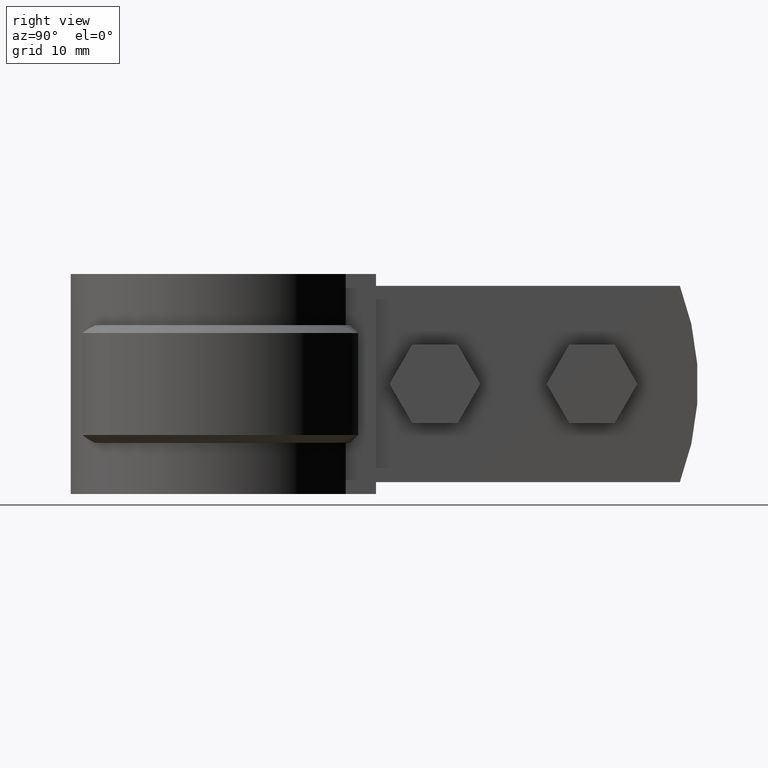
[diagram: clean part render]
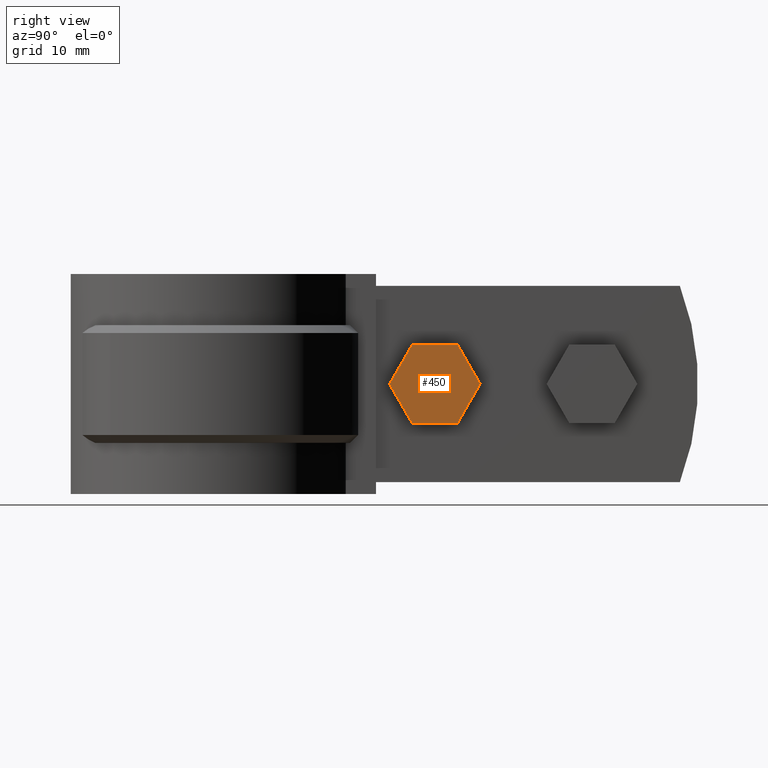
[diagram: same view with one face highlighted and labeled with its STEP entity id]
A machine part, right view. The second image highlights one B-rep face of the part: STEP entity #450.
In plain terms, the highlighted planar face has unit normal (-1, -0, -0).
Its self-contained STEP definition (entity closure, byte-faithful):
#450 = ADVANCED_FACE( '', ( #792 ), #793, .F. );
#792 = FACE_OUTER_BOUND( '', #1634, .T. );
#793 = PLANE( '', #1635 );
#1634 = EDGE_LOOP( '', ( #3929, #3930, #3931, #3932, #3933, #3934 ) );
#1635 = AXIS2_PLACEMENT_3D( '', #3935, #3936, #3937 );
#3929 = ORIENTED_EDGE( '', *, *, #4687, .T. );
#3930 = ORIENTED_EDGE( '', *, *, #4690, .T. );
#3931 = ORIENTED_EDGE( '', *, *, #4693, .T. );
#3932 = ORIENTED_EDGE( '', *, *, #4694, .T. );
#3933 = ORIENTED_EDGE( '', *, *, #4695, .T. );
#3934 = ORIENTED_EDGE( '', *, *, #4696, .T. );
#3935 = CARTESIAN_POINT( '', ( 9.10000000000066, 36.9822006036649, -17.5000000000016 ) );
#3936 = DIRECTION( '', ( -1.00000000000000, -1.47045902452177E-072, -8.48969913639920E-073 ) );
#3937 = DIRECTION( '', ( 1.69793982727990E-072, -0.866025403784439, -0.500000000000000 ) );
#4687 = EDGE_CURVE( '', #5434, #5432, #5435, .T. );
#4690 = EDGE_CURVE( '', #5432, #5437, #5439, .T. );
#4693 = EDGE_CURVE( '', #5437, #5444, #5445, .T. );
#4694 = EDGE_CURVE( '', #5444, #5446, #5447, .T. );
#4695 = EDGE_CURVE( '', #5446, #5448, #5449, .T. );
#4696 = EDGE_CURVE( '', #5448, #5434, #5450, .T. );
#5432 = VERTEX_POINT( '', #7800 );
#5434 = VERTEX_POINT( '', #7803 );
#5435 = LINE( '', #7804, #7805 );
#5437 = VERTEX_POINT( '', #7808 );
#5439 = LINE( '', #7811, #7812 );
#5444 = VERTEX_POINT( '', #7817 );
#5445 = LINE( '', #7818, #7819 );
#5446 = VERTEX_POINT( '', #7820 );
#5447 = LINE( '', #7821, #7822 );
#5448 = VERTEX_POINT( '', #7823 );
#5449 = LINE( '', #7824, #7825 );
#5450 = LINE( '', #7826, #7827 );
#7800 = CARTESIAN_POINT( '', ( 9.10000000000066, 31.2086979117673, -7.49999999999926 ) );
#7803 = CARTESIAN_POINT( '', ( 9.10000000000066, 34.0954492577160, -12.5000000000004 ) );
#7804 = CARTESIAN_POINT( '', ( 9.10000000000066, 34.0954492577160, -12.5000000000004 ) );
#7805 = VECTOR( '', #8617, 1000.00000000008 );
#7808 = CARTESIAN_POINT( '', ( 9.10000000000066, 25.4351952198704, -7.49999999999885 ) );
#7811 = CARTESIAN_POINT( '', ( 9.10000000000066, 31.2086979117673, -7.49999999999926 ) );
#7812 = VECTOR( '', #8620, 999.999999999953 );
#7817 = CARTESIAN_POINT( '', ( 9.10000000000066, 22.5484438739223, -12.4999999999996 ) );
#7818 = CARTESIAN_POINT( '', ( 9.10000000000066, 25.4351952198704, -7.49999999999885 ) );
#7819 = VECTOR( '', #8627, 999.999999999953 );
#7820 = CARTESIAN_POINT( '', ( 9.10000000000066, 25.4351952198711, -17.5000000000007 ) );
#7821 = CARTESIAN_POINT( '', ( 9.10000000000066, 22.5484438739223, -12.4999999999996 ) );
#7822 = VECTOR( '', #8628, 1000.00000000008 );
#7823 = CARTESIAN_POINT( '', ( 9.10000000000066, 31.2086979117680, -17.5000000000012 ) );
#7824 = CARTESIAN_POINT( '', ( 9.10000000000066, 25.4351952198711, -17.5000000000007 ) );
#7825 = VECTOR( '', #8629, 999.999999999953 );
#7826 = CARTESIAN_POINT( '', ( 9.10000000000066, 31.2086979117680, -17.5000000000012 ) );
#7827 = VECTOR( '', #8630, 999.999999999953 );
#8617 = DIRECTION( '', ( 3.27931221105122E-086, -0.500000000000000, 0.866025403784439 ) );
#8620 = DIRECTION( '', ( 1.47045902452171E-072, -1.00000000000000, 7.13318293321696E-014 ) );
#8627 = DIRECTION( '', ( 1.47045902452168E-072, -0.499999999999939, -0.866025403784474 ) );
#8628 = DIRECTION( '', ( -3.33032900685721E-086, 0.500000000000000, -0.866025403784439 ) );
#8629 = DIRECTION( '', ( -1.47045902452171E-072, 1.00000000000000, -7.13318293321696E-014 ) );
#8630 = DIRECTION( '', ( -1.47045902452168E-072, 0.499999999999939, 0.866025403784474 ) );